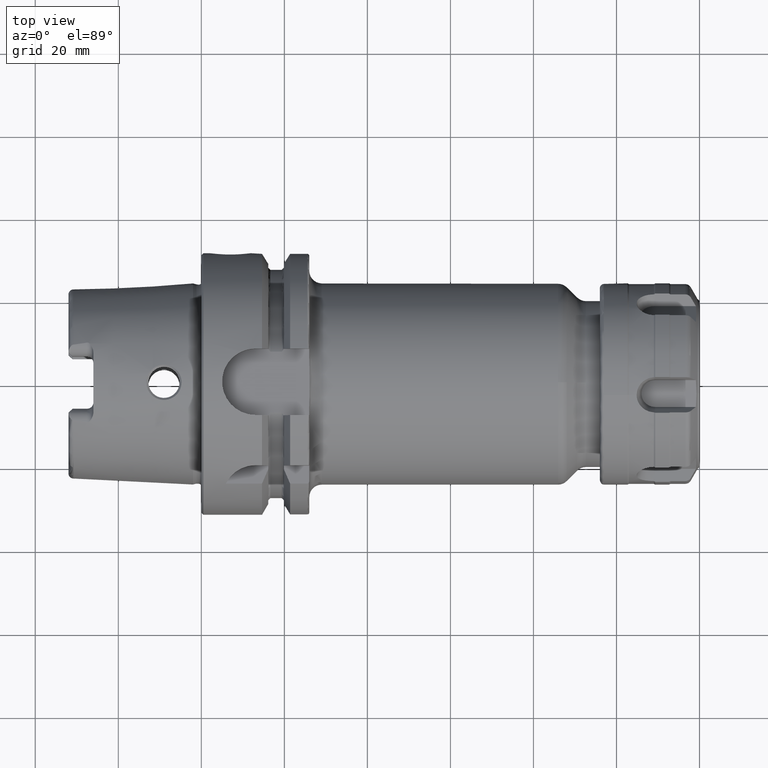
[diagram: clean part render]
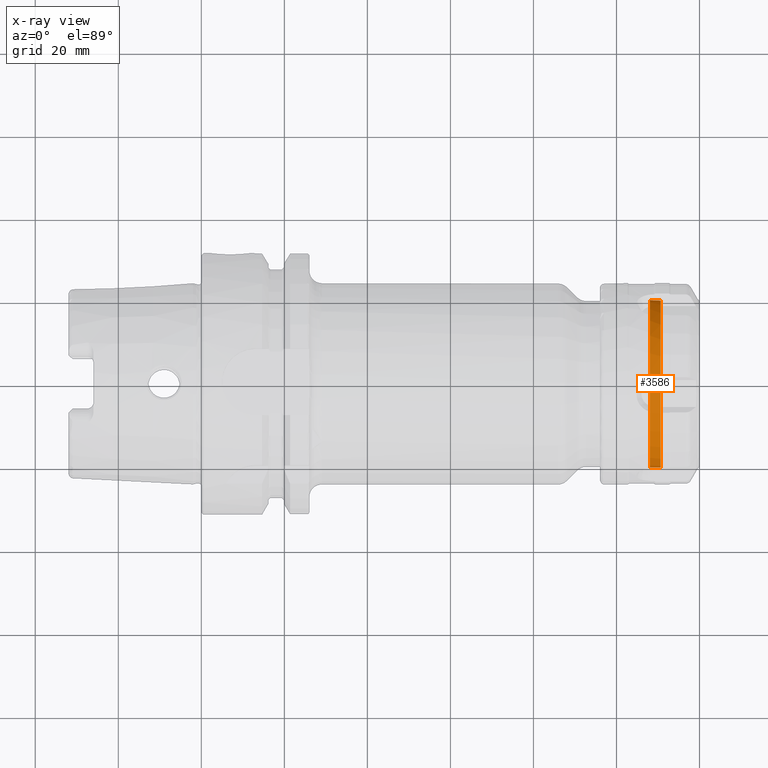
[diagram: x-ray — body ghosted, one internal face saturated and labeled with its STEP entity id]
A machine part, top view, then the same camera in x-ray: the body is ghosted and one INTERNAL B-rep face — a face not visible from any outside direction — is saturated and labeled: STEP entity #3586.
In plain terms, the highlighted cylindrical surface (bore or boss wall) has radius 20.2 mm, axis along (1, 0, 0).
Its self-contained STEP definition (entity closure, byte-faithful):
#344=CYLINDRICAL_SURFACE('',#4067,20.2);
#537=FACE_OUTER_BOUND('',#752,.T.);
#752=EDGE_LOOP('',(#3295,#3296,#3297,#3298,#3299));
#948=LINE('',#7347,#1134);
#1134=VECTOR('',#5088,20.2);
#1345=CIRCLE('',#4068,20.2);
#1346=CIRCLE('',#4069,20.2);
#1347=CIRCLE('',#4070,20.2);
#1706=VERTEX_POINT('',#7342);
#1707=VERTEX_POINT('',#7343);
#1708=VERTEX_POINT('',#7346);
#2244=EDGE_CURVE('',#1706,#1707,#1345,.T.);
#2245=EDGE_CURVE('',#1707,#1706,#1346,.T.);
#2246=EDGE_CURVE('',#1706,#1708,#948,.T.);
#2247=EDGE_CURVE('',#1708,#1708,#1347,.T.);
#3295=ORIENTED_EDGE('',*,*,#2244,.T.);
#3296=ORIENTED_EDGE('',*,*,#2245,.T.);
#3297=ORIENTED_EDGE('',*,*,#2246,.T.);
#3298=ORIENTED_EDGE('',*,*,#2247,.F.);
#3299=ORIENTED_EDGE('',*,*,#2246,.F.);
#3586=ADVANCED_FACE('',(#537),#344,.F.);
#4067=AXIS2_PLACEMENT_3D('',#7341,#5082,#5083);
#4068=AXIS2_PLACEMENT_3D('',#7344,#5084,#5085);
#4069=AXIS2_PLACEMENT_3D('',#7345,#5086,#5087);
#4070=AXIS2_PLACEMENT_3D('',#7348,#5089,#5090);
#5082=DIRECTION('center_axis',(1.,0.,0.));
#5083=DIRECTION('ref_axis',(0.,1.,0.));
#5084=DIRECTION('center_axis',(1.,0.,0.));
#5085=DIRECTION('ref_axis',(0.,0.,-1.));
#5086=DIRECTION('center_axis',(1.,0.,0.));
#5087=DIRECTION('ref_axis',(0.,0.,-1.));
#5088=DIRECTION('',(-1.,0.,0.));
#5089=DIRECTION('center_axis',(1.,0.,0.));
#5090=DIRECTION('ref_axis',(0.,0.,-1.));
#7341=CARTESIAN_POINT('Origin',(13.325,0.,0.));
#7342=CARTESIAN_POINT('',(14.65,-20.2,-2.47378653427765E-15));
#7343=CARTESIAN_POINT('',(14.65,-2.47378653427765E-15,20.2));
#7344=CARTESIAN_POINT('Origin',(14.65,0.,0.));
#7345=CARTESIAN_POINT('Origin',(14.65,0.,0.));
#7346=CARTESIAN_POINT('',(12.,-20.2,-2.47378653427765E-15));
#7347=CARTESIAN_POINT('',(13.325,-20.2,-2.47378653427765E-15));
#7348=CARTESIAN_POINT('Origin',(12.,0.,0.));